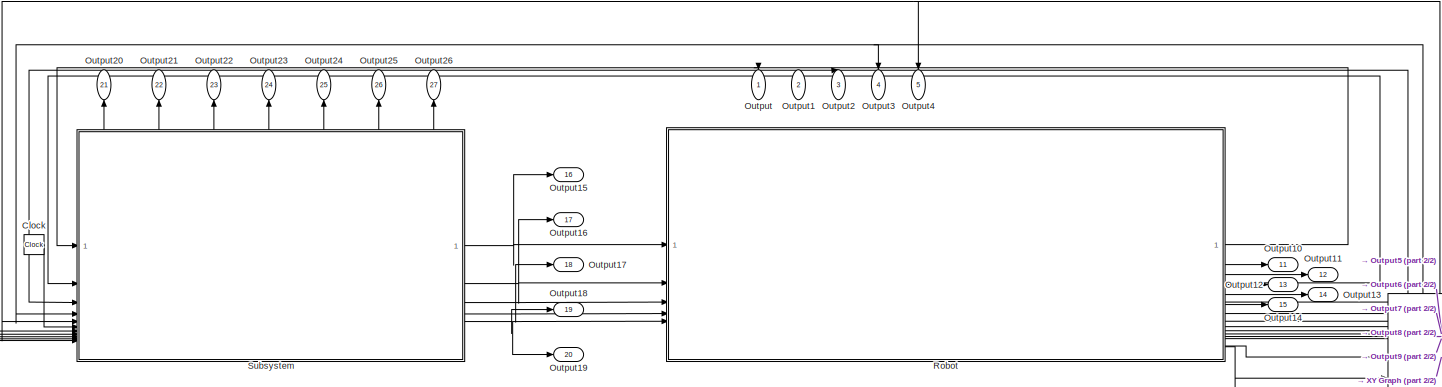
[diagram: root canvas - part 1/2, full width, middle band]
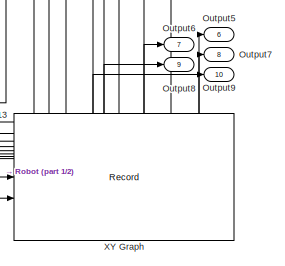
[diagram: root canvas - part 2/2, bottom right region]
MODEL slx_c414c2656b06
KIND model
CONFIG AbsTol = 1e-3
CONFIG EnableMultiTasking = on
CONFIG FixedStep = 0.01
CONFIG MaxStep = 0.1
CONFIG MinStep = auto
CONFIG RelTol = 1e-3
CONFIG SampleTimeConstraint = Unconstrained
CONFIG SolverName = ode45
CONFIG StartTime = 0.0
CONFIG StopTime = 20
WORKSPACE source: mxarray member
WORKSPACE N = 10000
WORKSPACE Ulim = 100000
BLOCK [Clock] Clock
  Decimation = 1000
BLOCK [Outport] Output
  NameLocation = left
BLOCK [Outport] Output1
  NameLocation = left
  Port = 2
BLOCK [Outport] Output10
  Port = 11
BLOCK [Outport] Output11
  Port = 12
BLOCK [Outport] Output12
  Port = 13
BLOCK [Outport] Output13
  Port = 14
BLOCK [Outport] Output14
  Port = 15
BLOCK [Outport] Output15
  Port = 16
BLOCK [Outport] Output16
  Port = 17
BLOCK [Outport] Output17
  Port = 18
BLOCK [Outport] Output18
  Port = 19
BLOCK [Outport] Output19
  Port = 20
BLOCK [Outport] Output2
  NameLocation = left
  Port = 3
BLOCK [Outport] Output20
  NameLocation = right
  Port = 21
BLOCK [Outport] Output21
  NameLocation = right
  Port = 22
BLOCK [Outport] Output22
  NameLocation = right
  Port = 23
BLOCK [Outport] Output23
  NameLocation = right
  Port = 24
BLOCK [Outport] Output24
  NameLocation = right
  Port = 25
BLOCK [Outport] Output25
  NameLocation = right
  Port = 26
BLOCK [Outport] Output26
  NameLocation = right
  Port = 27
BLOCK [Outport] Output3
  NameLocation = left
  Port = 4
BLOCK [Outport] Output4
  NameLocation = left
  Port = 5
BLOCK [Outport] Output5
  Port = 6
BLOCK [Outport] Output6
  Port = 7
BLOCK [Outport] Output7
  Port = 8
BLOCK [Outport] Output8
  Port = 9
BLOCK [Outport] Output9
  Port = 10
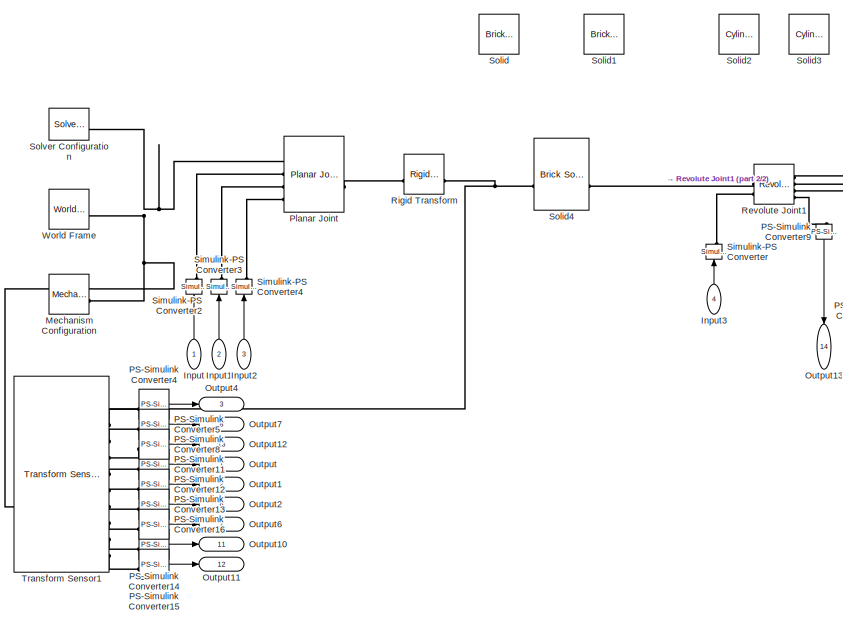
[diagram: Robot - part 1/2, left side, full height]
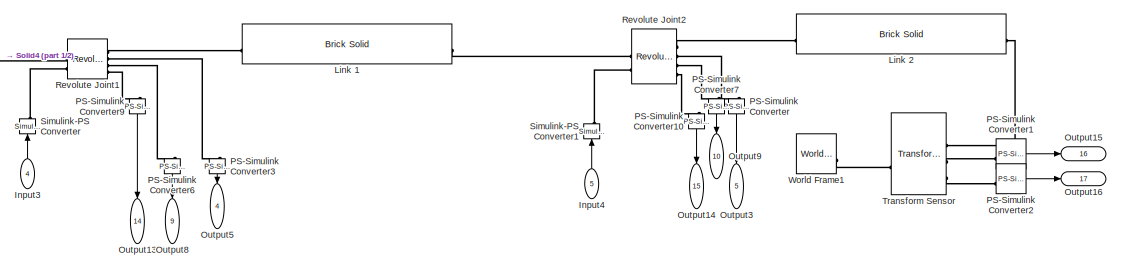
[diagram: Robot - part 2/2, middle right region]
BLOCK [SubSystem] Robot
BLOCK [Inport] Robot/Input
  IconDisplay = Signal name
  NameLocation = right
BLOCK [Inport] Robot/Input1
  IconDisplay = Signal name
  NameLocation = right
  Port = 2
BLOCK [Inport] Robot/Input2
  IconDisplay = Signal name
  NameLocation = right
  Port = 3
BLOCK [Inport] Robot/Input3
  IconDisplay = Signal name
  NameLocation = right
  Port = 4
BLOCK [Inport] Robot/Input4
  IconDisplay = Signal name
  NameLocation = right
  Port = 5
BLOCK [Reference] Robot/Link 1  REF=sm_lib/Body Elements/Brick Solid
  SourceBlock = sm_lib/Body Elements/Brick Solid
  SourceType = Brick Solid
BLOCK [Reference] Robot/Link 2  REF=sm_lib/Body Elements/Brick Solid
  SourceBlock = sm_lib/Body Elements/Brick Solid
  SourceType = Brick Solid
BLOCK [Reference] Robot/Mechanism Configuration  REF=sm_lib/Utilities/Mechanism
Configuration
  SourceBlock = sm_lib/Utilities/Mechanism\nConfiguration
  SourceType = Mechanism\nConfiguration
BLOCK [Outport] Robot/Output
  IconDisplay = Signal name
BLOCK [Outport] Robot/Output1
  IconDisplay = Signal name
  Port = 2
BLOCK [Outport] Robot/Output10
  IconDisplay = Signal name
  Port = 11
BLOCK [Outport] Robot/Output11
  IconDisplay = Signal name
  Port = 12
BLOCK [Outport] Robot/Output12
  IconDisplay = Signal name
  Port = 13
BLOCK [Outport] Robot/Output13
  IconDisplay = Signal name
  NameLocation = left
  Port = 14
BLOCK [Outport] Robot/Output14
  IconDisplay = Signal name
  NameLocation = left
  Port = 15
BLOCK [Outport] Robot/Output15
  IconDisplay = Signal name
  Port = 16
BLOCK [Outport] Robot/Output16
  IconDisplay = Signal name
  Port = 17
BLOCK [Outport] Robot/Output2
  IconDisplay = Signal name
  Port = 6
BLOCK [Outport] Robot/Output3
  IconDisplay = Signal name
  NameLocation = left
  Port = 5
BLOCK [Outport] Robot/Output4
  IconDisplay = Signal name
  Port = 3
BLOCK [Outport] Robot/Output5
  IconDisplay = Signal name
  NameLocation = left
  Port = 4
BLOCK [Outport] Robot/Output6
  IconDisplay = Signal name
  Port = 7
BLOCK [Outport] Robot/Output7
  IconDisplay = Signal name
  Port = 8
BLOCK [Outport] Robot/Output8
  IconDisplay = Signal name
  NameLocation = left
  Port = 9
BLOCK [Outport] Robot/Output9
  IconDisplay = Signal name
  NameLocation = left
  Port = 10
BLOCK [Reference] Robot/PS-Simulink Converter  REF=nesl_utility/PS-Simulink
Converter
  NameLocation = left
  SourceBlock = nesl_utility/PS-Simulink\nConverter
  SourceType = PS-Simulink\nConverter
BLOCK [Reference] Robot/PS-Simulink Converter1  REF=nesl_utility/PS-Simulink
Converter
  SourceBlock = nesl_utility/PS-Simulink\nConverter
  SourceType = PS-Simulink\nConverter
BLOCK [Reference] Robot/PS-Simulink Converter10  REF=nesl_utility/PS-Simulink
Converter
  NameLocation = left
  SourceBlock = nesl_utility/PS-Simulink\nConverter
  SourceType = PS-Simulink\nConverter
BLOCK [Reference] Robot/PS-Simulink Converter11  REF=nesl_utility/PS-Simulink
Converter
  SourceBlock = nesl_utility/PS-Simulink\nConverter
  SourceType = PS-Simulink\nConverter
BLOCK [Reference] Robot/PS-Simulink Converter12  REF=nesl_utility/PS-Simulink
Converter
  SourceBlock = nesl_utility/PS-Simulink\nConverter
  SourceType = PS-Simulink\nConverter
BLOCK [Reference] Robot/PS-Simulink Converter13  REF=nesl_utility/PS-Simulink
Converter
  SourceBlock = nesl_utility/PS-Simulink\nConverter
  SourceType = PS-Simulink\nConverter
BLOCK [Reference] Robot/PS-Simulink Converter14  REF=nesl_utility/PS-Simulink
Converter
  SourceBlock = nesl_utility/PS-Simulink\nConverter
  SourceType = PS-Simulink\nConverter
BLOCK [Reference] Robot/PS-Simulink Converter15  REF=nesl_utility/PS-Simulink
Converter
  SourceBlock = nesl_utility/PS-Simulink\nConverter
  SourceType = PS-Simulink\nConverter
BLOCK [Reference] Robot/PS-Simulink Converter16  REF=nesl_utility/PS-Simulink
Converter
  SourceBlock = nesl_utility/PS-Simulink\nConverter
  SourceType = PS-Simulink\nConverter
BLOCK [Reference] Robot/PS-Simulink Converter2  REF=nesl_utility/PS-Simulink
Converter
  SourceBlock = nesl_utility/PS-Simulink\nConverter
  SourceType = PS-Simulink\nConverter
BLOCK [Reference] Robot/PS-Simulink Converter3  REF=nesl_utility/PS-Simulink
Converter
  NameLocation = left
  SourceBlock = nesl_utility/PS-Simulink\nConverter
  SourceType = PS-Simulink\nConverter
BLOCK [Reference] Robot/PS-Simulink Converter4  REF=nesl_utility/PS-Simulink
Converter
  SourceBlock = nesl_utility/PS-Simulink\nConverter
  SourceType = PS-Simulink\nConverter
BLOCK [Reference] Robot/PS-Simulink Converter5  REF=nesl_utility/PS-Simulink
Converter
  SourceBlock = nesl_utility/PS-Simulink\nConverter
  SourceType = PS-Simulink\nConverter
BLOCK [Reference] Robot/PS-Simulink Converter6  REF=nesl_utility/PS-Simulink
Converter
  NameLocation = left
  SourceBlock = nesl_utility/PS-Simulink\nConverter
  SourceType = PS-Simulink\nConverter
BLOCK [Reference] Robot/PS-Simulink Converter7  REF=nesl_utility/PS-Simulink
Converter
  NameLocation = left
  SourceBlock = nesl_utility/PS-Simulink\nConverter
  SourceType = PS-Simulink\nConverter
BLOCK [Reference] Robot/PS-Simulink Converter8  REF=nesl_utility/PS-Simulink
Converter
  SourceBlock = nesl_utility/PS-Simulink\nConverter
  SourceType = PS-Simulink\nConverter
BLOCK [Reference] Robot/PS-Simulink Converter9  REF=nesl_utility/PS-Simulink
Converter
  NameLocation = left
  SourceBlock = nesl_utility/PS-Simulink\nConverter
  SourceType = PS-Simulink\nConverter
BLOCK [Reference] Robot/Planar Joint  REF=sm_lib/Joints/Planar Joint
  SourceBlock = sm_lib/Joints/Planar Joint
  SourceType = Planar Joint
BLOCK [Reference] Robot/Revolute Joint1  REF=sm_lib/Joints/Revolute Joint
  SourceBlock = sm_lib/Joints/Revolute Joint
  SourceType = Revolute Joint
BLOCK [Reference] Robot/Revolute Joint2  REF=sm_lib/Joints/Revolute Joint
  SourceBlock = sm_lib/Joints/Revolute Joint
  SourceType = Revolute Joint
BLOCK [Reference] Robot/Rigid Transform  REF=sm_lib/Frames and
Transforms/Rigid
Transform
  SourceBlock = sm_lib/Frames and\nTransforms/Rigid\nTransform
  SourceType = Rigid\nTransform
BLOCK [Reference] Robot/Simulink-PS Converter  REF=nesl_utility/Simulink-PS
Converter
  NameLocation = right
  SourceBlock = nesl_utility/Simulink-PS\nConverter
  SourceType = Simulink-PS\nConverter
BLOCK [Reference] Robot/Simulink-PS Converter1  REF=nesl_utility/Simulink-PS
Converter
  NameLocation = right
  SourceBlock = nesl_utility/Simulink-PS\nConverter
  SourceType = Simulink-PS\nConverter
BLOCK [Reference] Robot/Simulink-PS Converter2  REF=nesl_utility/Simulink-PS
Converter
  NameLocation = right
  SourceBlock = nesl_utility/Simulink-PS\nConverter
  SourceType = Simulink-PS\nConverter
BLOCK [Reference] Robot/Simulink-PS Converter3  REF=nesl_utility/Simulink-PS
Converter
  NameLocation = right
  SourceBlock = nesl_utility/Simulink-PS\nConverter
  SourceType = Simulink-PS\nConverter
BLOCK [Reference] Robot/Simulink-PS Converter4  REF=nesl_utility/Simulink-PS
Converter
  NameLocation = right
  SourceBlock = nesl_utility/Simulink-PS\nConverter
  SourceType = Simulink-PS\nConverter
BLOCK [Reference] Robot/Solid  REF=sm_lib/Body Elements/Brick Solid
  Commented = on
  NameLocation = top
  SourceBlock = sm_lib/Body Elements/Brick Solid
  SourceType = Brick Solid
BLOCK [Reference] Robot/Solid1  REF=sm_lib/Body Elements/Brick Solid
  Commented = on
  SourceBlock = sm_lib/Body Elements/Brick Solid
  SourceType = Brick Solid
BLOCK [Reference] Robot/Solid2  REF=sm_lib/Body Elements/Cylindrical Solid
  Commented = on
  SourceBlock = sm_lib/Body Elements/Cylindrical Solid
  SourceType = Cylindrical Solid
BLOCK [Reference] Robot/Solid3  REF=sm_lib/Body Elements/Cylindrical Solid
  Commented = on
  SourceBlock = sm_lib/Body Elements/Cylindrical Solid
  SourceType = Cylindrical Solid
BLOCK [Reference] Robot/Solid4  REF=sm_lib/Body Elements/Brick Solid
  NameLocation = top
  SourceBlock = sm_lib/Body Elements/Brick Solid
  SourceType = Brick Solid
BLOCK [Reference] Robot/Solver Configuration  REF=nesl_utility/Solver
Configuration
  SourceBlock = nesl_utility/Solver\nConfiguration
  SourceType = Solver\nConfiguration
BLOCK [Reference] Robot/Transform Sensor  REF=sm_lib/Frames and
Transforms/Transform
Sensor
  SourceBlock = sm_lib/Frames and\nTransforms/Transform\nSensor
  SourceType = Transform\nSensor
BLOCK [Reference] Robot/Transform Sensor1  REF=sm_lib/Frames and
Transforms/Transform
Sensor
  SourceBlock = sm_lib/Frames and\nTransforms/Transform\nSensor
  SourceType = Transform\nSensor
BLOCK [Reference] Robot/World Frame  REF=sm_lib/Frames and
Transforms/World Frame
  SourceBlock = sm_lib/Frames and\nTransforms/World Frame
  SourceType = World Frame
BLOCK [Reference] Robot/World Frame1  REF=sm_lib/Frames and
Transforms/World Frame
  SourceBlock = sm_lib/Frames and\nTransforms/World Frame
  SourceType = World Frame
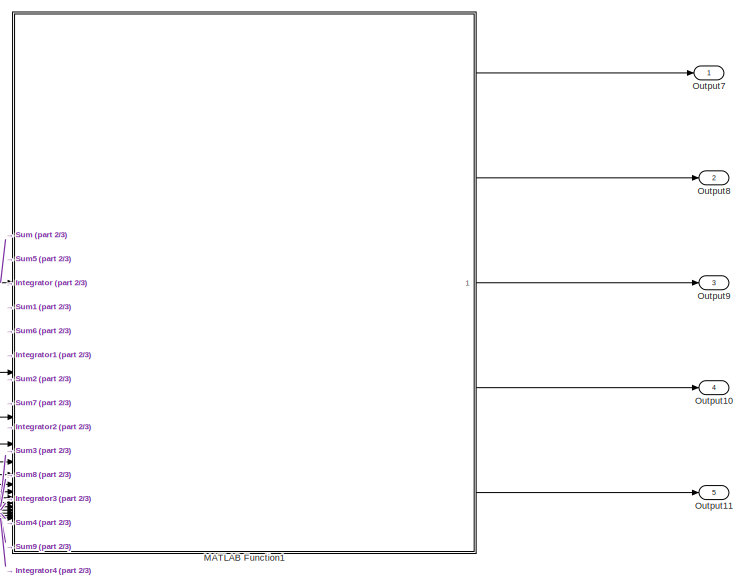
[diagram: Subsystem - part 1/3, middle right region]
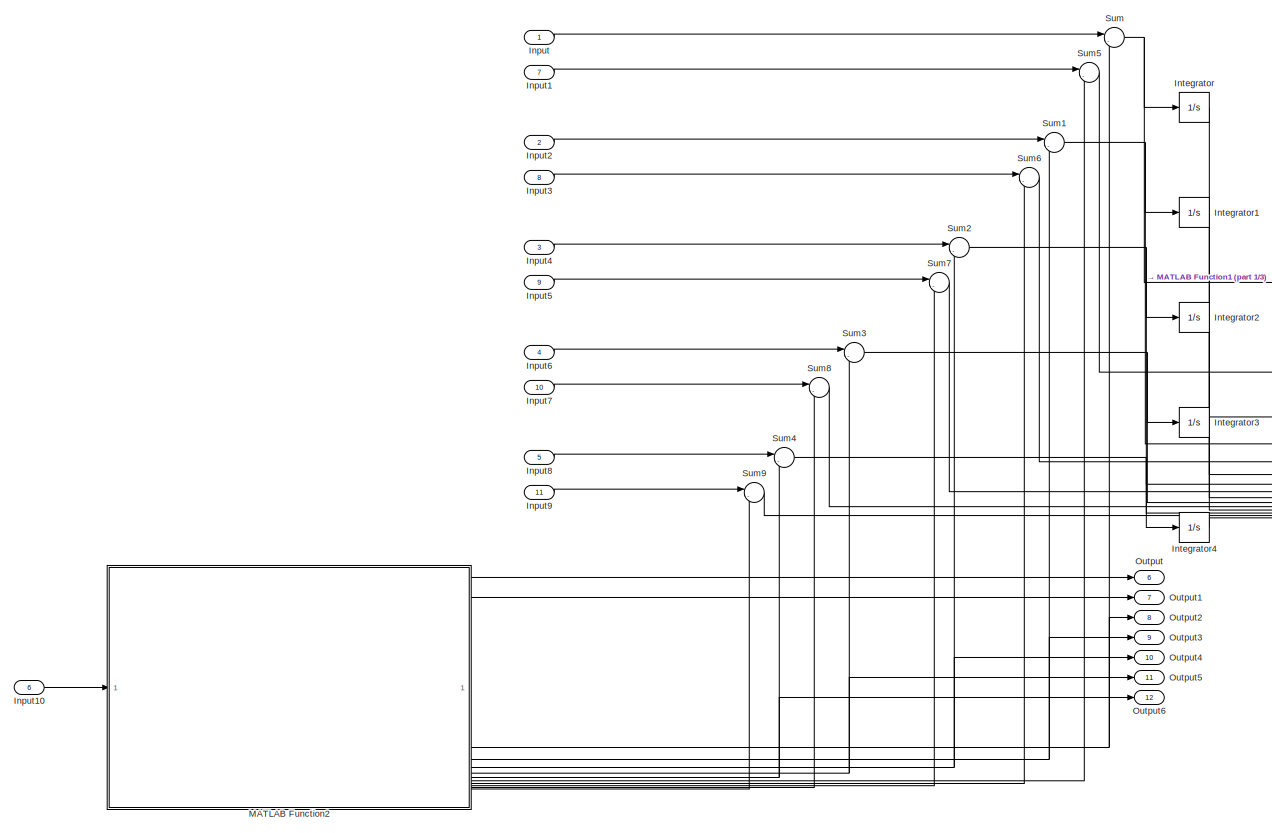
[diagram: Subsystem - part 2/3, center side, full height]
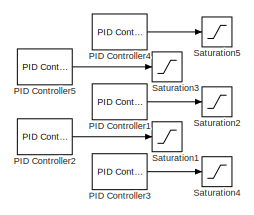
[diagram: Subsystem - part 3/3, middle left region]
BLOCK [SubSystem] Subsystem
  PortSchema = {"entries":[{"content":{"sides":[{"content":{"connectorIds":["In1","In2","In3","In4","In5","In6","In7","In8","In9","In10","In11"]},"type":"ConnectorPlacement.EquallySpacedRectSide","uuid":"b8769358-97ec-483c-a446-740b08b88b02"},{"content":{"connectorIds":["Out1","Out2","Out3","Out4","Out5"],"side":"RIGHT"},"type":"ConnectorPlacement.EquallySpacedRectSide","uuid":"e4d005e6-bdee-4c64-8aa8-fea3691b09...<+381ch>
  ShowPortLabels = SignalName
  SystemSampleTime = 0
  TreatAsAtomicUnit = on
  TreatAsGroupedWhenPropagatingVariantConditions = off
BLOCK [Inport] Subsystem/Input
BLOCK [Inport] Subsystem/Input1
  Port = 7
BLOCK [Inport] Subsystem/Input10
  IconDisplay = Signal name
  Port = 6
  SampleTime = 0
BLOCK [Inport] Subsystem/Input2
  Port = 2
BLOCK [Inport] Subsystem/Input3
  Port = 8
BLOCK [Inport] Subsystem/Input4
  Port = 3
BLOCK [Inport] Subsystem/Input5
  Port = 9
BLOCK [Inport] Subsystem/Input6
  Port = 4
BLOCK [Inport] Subsystem/Input7
  Port = 10
BLOCK [Inport] Subsystem/Input8
  Port = 5
BLOCK [Inport] Subsystem/Input9
  Port = 11
BLOCK [Integrator] Subsystem/Integrator
BLOCK [Integrator] Subsystem/Integrator1
BLOCK [Integrator] Subsystem/Integrator2
BLOCK [Integrator] Subsystem/Integrator3
BLOCK [Integrator] Subsystem/Integrator4
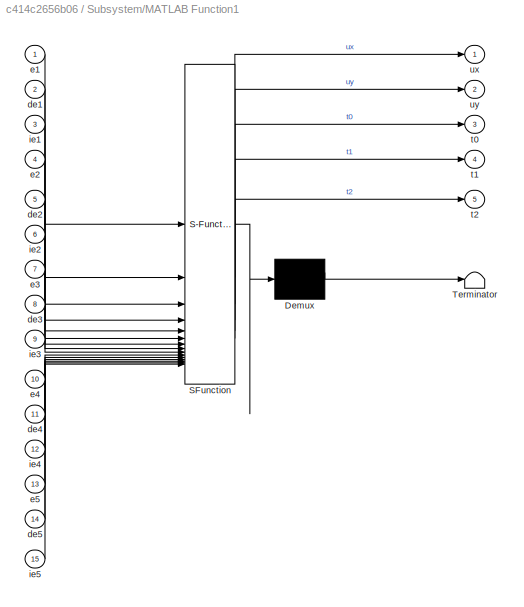
BLOCK [SubSystem] Subsystem/MATLAB Function1
  ErrorFcn = Stateflow.Translate.translate
  MinAlgLoopOccurrences = on
  PermitHierarchicalResolution = ExplicitOnly
  SFBlockType = MATLAB Function
BLOCK [Demux] Subsystem/MATLAB Function1/ Demux 
  Outputs = 1
BLOCK [S-Function] Subsystem/MATLAB Function1/ SFunction 
  EnableBusSupport = on
  FunctionName = sf_sfun
  PortCounts = [15 6]
  SFcnIsStateOwnerBlock = off
  SFunctionDeploymentMode = off
  Tag = Stateflow S-Function 1
BLOCK [Terminator] Subsystem/MATLAB Function1/ Terminator 
BLOCK [Inport] Subsystem/MATLAB Function1/de1
  Port = 2
BLOCK [Inport] Subsystem/MATLAB Function1/de2
  Port = 5
BLOCK [Inport] Subsystem/MATLAB Function1/de3
  Port = 8
BLOCK [Inport] Subsystem/MATLAB Function1/de4
  Port = 11
BLOCK [Inport] Subsystem/MATLAB Function1/de5
  Port = 14
BLOCK [Inport] Subsystem/MATLAB Function1/e1
BLOCK [Inport] Subsystem/MATLAB Function1/e2
  Port = 4
BLOCK [Inport] Subsystem/MATLAB Function1/e3
  Port = 7
BLOCK [Inport] Subsystem/MATLAB Function1/e4
  Port = 10
BLOCK [Inport] Subsystem/MATLAB Function1/e5
  Port = 13
BLOCK [Inport] Subsystem/MATLAB Function1/ie1
  Port = 3
BLOCK [Inport] Subsystem/MATLAB Function1/ie2
  Port = 6
BLOCK [Inport] Subsystem/MATLAB Function1/ie3
  Port = 9
BLOCK [Inport] Subsystem/MATLAB Function1/ie4
  Port = 12
BLOCK [Inport] Subsystem/MATLAB Function1/ie5
  Port = 15
BLOCK [Outport] Subsystem/MATLAB Function1/t0
  Port = 3
BLOCK [Outport] Subsystem/MATLAB Function1/t1
  Port = 4
BLOCK [Outport] Subsystem/MATLAB Function1/t2
  Port = 5
BLOCK [Outport] Subsystem/MATLAB Function1/ux
BLOCK [Outport] Subsystem/MATLAB Function1/uy
  Port = 2
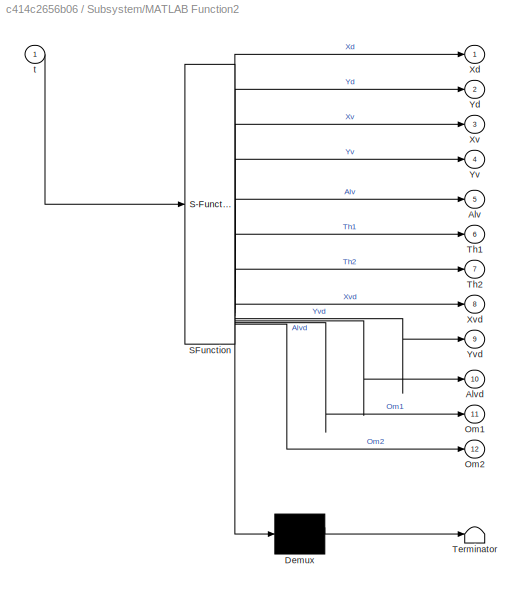
BLOCK [SubSystem] Subsystem/MATLAB Function2
  ErrorFcn = Stateflow.Translate.translate
  MinAlgLoopOccurrences = on
  PermitHierarchicalResolution = ExplicitOnly
  SFBlockType = MATLAB Function
BLOCK [Demux] Subsystem/MATLAB Function2/ Demux 
  Outputs = 1
BLOCK [S-Function] Subsystem/MATLAB Function2/ SFunction 
  EnableBusSupport = on
  FunctionName = sf_sfun
  PortCounts = [1 13]
  SFcnIsStateOwnerBlock = off
  SFunctionDeploymentMode = off
  Tag = Stateflow S-Function 3
BLOCK [Terminator] Subsystem/MATLAB Function2/ Terminator 
BLOCK [Outport] Subsystem/MATLAB Function2/Alv
  Port = 5
BLOCK [Outport] Subsystem/MATLAB Function2/Alvd
  Port = 10
BLOCK [Outport] Subsystem/MATLAB Function2/Om1
  Port = 11
BLOCK [Outport] Subsystem/MATLAB Function2/Om2
  Port = 12
BLOCK [Outport] Subsystem/MATLAB Function2/Th1
  Port = 6
BLOCK [Outport] Subsystem/MATLAB Function2/Th2
  Port = 7
BLOCK [Outport] Subsystem/MATLAB Function2/Xd
BLOCK [Outport] Subsystem/MATLAB Function2/Xv
  Port = 3
BLOCK [Outport] Subsystem/MATLAB Function2/Xvd
  Port = 8
BLOCK [Outport] Subsystem/MATLAB Function2/Yd
  Port = 2
BLOCK [Outport] Subsystem/MATLAB Function2/Yv
  Port = 4
BLOCK [Outport] Subsystem/MATLAB Function2/Yvd
  Port = 9
BLOCK [Inport] Subsystem/MATLAB Function2/t
BLOCK [Outport] Subsystem/Output
  Port = 6
BLOCK [Outport] Subsystem/Output1
  Port = 7
BLOCK [Outport] Subsystem/Output10
  Port = 4
BLOCK [Outport] Subsystem/Output11
  Port = 5
BLOCK [Outport] Subsystem/Output2
  Port = 8
BLOCK [Outport] Subsystem/Output3
  Port = 9
BLOCK [Outport] Subsystem/Output4
  Port = 10
BLOCK [Outport] Subsystem/Output5
  Port = 11
BLOCK [Outport] Subsystem/Output6
  Port = 12
BLOCK [Outport] Subsystem/Output7
BLOCK [Outport] Subsystem/Output8
  Port = 2
BLOCK [Outport] Subsystem/Output9
  Port = 3
BLOCK [Reference] Subsystem/PID Controller1  REF=slpidlib/PID Controller
  Commented = on
  LibrarySourceBlock = simulink/Continuous/PID Controller
  SourceBlock = slpidlib/PID Controller
  SourceType = PID 1dof
BLOCK [Reference] Subsystem/PID Controller2  REF=slpidlib/PID Controller
  Commented = on
  LibrarySourceBlock = simulink/Continuous/PID Controller
  SourceBlock = slpidlib/PID Controller
  SourceType = PID 1dof
BLOCK [Reference] Subsystem/PID Controller3  REF=slpidlib/PID Controller
  Commented = on
  LibrarySourceBlock = simulink/Continuous/PID Controller
  SourceBlock = slpidlib/PID Controller
  SourceType = PID 1dof
BLOCK [Reference] Subsystem/PID Controller4  REF=slpidlib/PID Controller
  Commented = on
  LibrarySourceBlock = simulink/Continuous/PID Controller
  SourceBlock = slpidlib/PID Controller
  SourceType = PID 1dof
BLOCK [Reference] Subsystem/PID Controller5  REF=slpidlib/PID Controller
  Commented = on
  LibrarySourceBlock = simulink/Continuous/PID Controller
  SourceBlock = slpidlib/PID Controller
  SourceType = PID 1dof
BLOCK [Saturate] Subsystem/Saturation1
  Commented = on
  LowerLimit = -Ulim
  UpperLimit = Ulim
BLOCK [Saturate] Subsystem/Saturation2
  Commented = on
  LowerLimit = -Ulim
  UpperLimit = Ulim
BLOCK [Saturate] Subsystem/Saturation3
  Commented = on
  LowerLimit = -Ulim
  UpperLimit = Ulim
BLOCK [Saturate] Subsystem/Saturation4
  Commented = on
  LowerLimit = -Ulim
  UpperLimit = Ulim
BLOCK [Saturate] Subsystem/Saturation5
  Commented = on
  LowerLimit = -Ulim
  UpperLimit = Ulim
BLOCK [Sum] Subsystem/Sum
  Inputs = |-+
BLOCK [Sum] Subsystem/Sum1
  Inputs = |-+
BLOCK [Sum] Subsystem/Sum2
  Inputs = |-+
BLOCK [Sum] Subsystem/Sum3
  Inputs = |-+
BLOCK [Sum] Subsystem/Sum4
  Inputs = |-+
BLOCK [Sum] Subsystem/Sum5
  Inputs = |-+
BLOCK [Sum] Subsystem/Sum6
  Inputs = |-+
BLOCK [Sum] Subsystem/Sum7
  Inputs = |-+
BLOCK [Sum] Subsystem/Sum8
  Inputs = |-+
BLOCK [Sum] Subsystem/Sum9
  Inputs = |-+
BLOCK [Record] XY Graph
  CompatibilityTag = XY
  FileSettingsInternal = {"entries":[{"content":{"excelSettings":{"content":{},"type":"Streamout.ExcelSettings"}},"type":"Streamout.FileSettingStorage","uuid":""}],"packageUris":["http:\/\/schema.mathworks.com\/mf0\/streamout_blocks\/R2020a"],"version":"1.0"}
  Layout = [1 1]
  SignalsInternal = {"entries":[{"content":{"signals":[{"content":{"blockPath":[],"dimensions":[1],"domain":"","lineColor":"#a2142f","plots":[ 1 ],"port":1,"signalID":1,"signalName":"Robot:16"},"type":"RecordBlkView.Signal","uuid":""},{"content":{"blockPath":[],"dimensions":[1],"domain":"","lineColor":"#139fff","plots":[ 1 ],"port":2,"signalID":2,"signalName":"Robot:17"},"type":"RecordBlkView.Signal","uuid":""}]},"ty...<+140ch>
  VisualizationBindings = {"xyplotplugin":{"info":[{"series":[{"bindingParametersList":[{"parameter":"X-Axis","signalID":1,"signalName":"Robot:16"},{"parameter":"Y-Axis","signalID":2,"signalName":"Robot:17"}],"seriesID":0}],"subplotID":1}]}}
LINE Clock:1 -> Subsystem:6
LINE Robot/Input1:1 -> Robot/Simulink-PS Converter3:1
LINE Robot/Input2:1 -> Robot/Simulink-PS Converter4:1
LINE Robot/Input3:1 -> Robot/Simulink-PS Converter:1
LINE Robot/Input4:1 -> Robot/Simulink-PS Converter1:1
LINE Robot/Input:1 -> Robot/Simulink-PS Converter2:1
LINE Robot/PS-Simulink Converter10:1 -> Robot/Output14:1
LINE Robot/PS-Simulink Converter11:1 -> Robot/Output:1
LINE Robot/PS-Simulink Converter12:1 -> Robot/Output1:1
LINE Robot/PS-Simulink Converter13:1 -> Robot/Output2:1
LINE Robot/PS-Simulink Converter14:1 -> Robot/Output10:1
LINE Robot/PS-Simulink Converter15:1 -> Robot/Output11:1
LINE Robot/PS-Simulink Converter16:1 -> Robot/Output6:1
LINE Robot/PS-Simulink Converter1:1 -> Robot/Output15:1
LINE Robot/PS-Simulink Converter2:1 -> Robot/Output16:1
LINE Robot/PS-Simulink Converter3:1 -> Robot/Output5:1
LINE Robot/PS-Simulink Converter4:1 -> Robot/Output4:1
LINE Robot/PS-Simulink Converter5:1 -> Robot/Output7:1
LINE Robot/PS-Simulink Converter6:1 -> Robot/Output8:1
LINE Robot/PS-Simulink Converter7:1 -> Robot/Output9:1
LINE Robot/PS-Simulink Converter8:1 -> Robot/Output12:1
LINE Robot/PS-Simulink Converter9:1 -> Robot/Output13:1
LINE Robot/PS-Simulink Converter:1 -> Robot/Output3:1
NET Robot:1 -> Output:1, Subsystem:1
NET Robot:10 -> Output9:1, Subsystem:11
LINE Robot:11 -> Output10:1
LINE Robot:12 -> Output11:1
LINE Robot:13 -> Output12:1
LINE Robot:14 -> Output13:1
LINE Robot:15 -> Output14:1
LINE Robot:16 -> XY Graph:1
LINE Robot:17 -> XY Graph:2
NET Robot:2 -> Output1:1, Subsystem:2
NET Robot:3 -> Output2:1, Subsystem:3
NET Robot:4 -> Output3:1, Subsystem:4
NET Robot:5 -> Output4:1, Subsystem:5
NET Robot:6 -> Output5:1, Subsystem:7
NET Robot:7 -> Output6:1, Subsystem:8
NET Robot:8 -> Output7:1, Subsystem:9
NET Robot:9 -> Output8:1, Subsystem:10
LINE Subsystem/Input10:1 -> Subsystem/MATLAB Function2:1
LINE Subsystem/Input1:1 -> Subsystem/Sum5:1
LINE Subsystem/Input2:1 -> Subsystem/Sum1:1
LINE Subsystem/Input3:1 -> Subsystem/Sum6:1
LINE Subsystem/Input4:1 -> Subsystem/Sum2:1
LINE Subsystem/Input5:1 -> Subsystem/Sum7:1
LINE Subsystem/Input6:1 -> Subsystem/Sum3:1
LINE Subsystem/Input7:1 -> Subsystem/Sum8:1
LINE Subsystem/Input8:1 -> Subsystem/Sum4:1
LINE Subsystem/Input9:1 -> Subsystem/Sum9:1
LINE Subsystem/Input:1 -> Subsystem/Sum:1
LINE Subsystem/Integrator1:1 -> Subsystem/MATLAB Function1:6
LINE Subsystem/Integrator2:1 -> Subsystem/MATLAB Function1:9
LINE Subsystem/Integrator3:1 -> Subsystem/MATLAB Function1:12
LINE Subsystem/Integrator4:1 -> Subsystem/MATLAB Function1:15
LINE Subsystem/Integrator:1 -> Subsystem/MATLAB Function1:3
LINE Subsystem/MATLAB Function1:1 -> Subsystem/Output7:1
LINE Subsystem/MATLAB Function1:2 -> Subsystem/Output8:1
LINE Subsystem/MATLAB Function1:3 -> Subsystem/Output9:1
LINE Subsystem/MATLAB Function1:4 -> Subsystem/Output10:1
LINE Subsystem/MATLAB Function1:5 -> Subsystem/Output11:1
LINE Subsystem/MATLAB Function2:1 -> Subsystem/Output:1
LINE Subsystem/MATLAB Function2:10 -> Subsystem/Sum7:2
LINE Subsystem/MATLAB Function2:11 -> Subsystem/Sum8:2
LINE Subsystem/MATLAB Function2:12 -> Subsystem/Sum9:2
LINE Subsystem/MATLAB Function2:2 -> Subsystem/Output1:1
NET Subsystem/MATLAB Function2:3 -> Subsystem/Output2:1, Subsystem/Sum:2
NET Subsystem/MATLAB Function2:4 -> Subsystem/Output3:1, Subsystem/Sum1:2
NET Subsystem/MATLAB Function2:5 -> Subsystem/Output4:1, Subsystem/Sum2:2
NET Subsystem/MATLAB Function2:6 -> Subsystem/Output5:1, Subsystem/Sum3:2
NET Subsystem/MATLAB Function2:7 -> Subsystem/Output6:1, Subsystem/Sum4:2
LINE Subsystem/MATLAB Function2:8 -> Subsystem/Sum5:2
LINE Subsystem/MATLAB Function2:9 -> Subsystem/Sum6:2
LINE Subsystem/PID Controller1:1 -> Subsystem/Saturation2:1
LINE Subsystem/PID Controller2:1 -> Subsystem/Saturation1:1
LINE Subsystem/PID Controller3:1 -> Subsystem/Saturation4:1
LINE Subsystem/PID Controller4:1 -> Subsystem/Saturation5:1
LINE Subsystem/PID Controller5:1 -> Subsystem/Saturation3:1
NET Subsystem/Sum1:1 -> Subsystem/Integrator1:1, Subsystem/MATLAB Function1:4
NET Subsystem/Sum2:1 -> Subsystem/Integrator2:1, Subsystem/MATLAB Function1:7
NET Subsystem/Sum3:1 -> Subsystem/Integrator3:1, Subsystem/MATLAB Function1:10
NET Subsystem/Sum4:1 -> Subsystem/Integrator4:1, Subsystem/MATLAB Function1:13
LINE Subsystem/Sum5:1 -> Subsystem/MATLAB Function1:2
LINE Subsystem/Sum6:1 -> Subsystem/MATLAB Function1:5
LINE Subsystem/Sum7:1 -> Subsystem/MATLAB Function1:8
LINE Subsystem/Sum8:1 -> Subsystem/MATLAB Function1:11
LINE Subsystem/Sum9:1 -> Subsystem/MATLAB Function1:14
NET Subsystem/Sum:1 -> Subsystem/Integrator:1, Subsystem/MATLAB Function1:1
NET Subsystem:1 -> Output15:1, Robot:1
LINE Subsystem:10 -> Output24:1
LINE Subsystem:11 -> Output25:1
LINE Subsystem:12 -> Output26:1
NET Subsystem:2 -> Output16:1, Robot:2
NET Subsystem:3 -> Output17:1, Robot:3
NET Subsystem:4 -> Output18:1, Robot:4
NET Subsystem:5 -> Output19:1, Robot:5
LINE Subsystem:6 -> Output20:1
LINE Subsystem:7 -> Output21:1
LINE Subsystem:8 -> Output22:1
LINE Subsystem:9 -> Output23:1
PLINE Robot/Link 1:LConn1 -- Robot/Revolute Joint1:RConn1
PLINE Robot/Link 1:RConn1 -- Robot/Revolute Joint2:LConn1
PLINE Robot/Link 2:LConn1 -- Robot/Revolute Joint2:RConn1
PLINE Robot/Link 2:RConn1 -- Robot/Transform Sensor:RConn1
PNET net1: Robot/Mechanism Configuration:RConn1 -- Robot/Planar Joint:LConn1 -- Robot/Solver Configuration:RConn1 -- Robot/Transform Sensor1:LConn1 -- Robot/World Frame:RConn1
PLINE Robot/PS-Simulink Converter10:LConn1 -- Robot/Revolute Joint2:RConn4
PLINE Robot/PS-Simulink Converter11:LConn1 -- Robot/Transform Sensor1:RConn5
PLINE Robot/PS-Simulink Converter12:LConn1 -- Robot/Transform Sensor1:RConn6
PLINE Robot/PS-Simulink Converter13:LConn1 -- Robot/Transform Sensor1:RConn7
PLINE Robot/PS-Simulink Converter14:LConn1 -- Robot/Transform Sensor1:RConn9
PLINE Robot/PS-Simulink Converter15:LConn1 -- Robot/Transform Sensor1:RConn10
PLINE Robot/PS-Simulink Converter16:LConn1 -- Robot/Transform Sensor1:RConn8
PLINE Robot/PS-Simulink Converter1:LConn1 -- Robot/Transform Sensor:RConn2
PLINE Robot/PS-Simulink Converter2:LConn1 -- Robot/Transform Sensor:RConn3
PLINE Robot/PS-Simulink Converter3:LConn1 -- Robot/Revolute Joint1:RConn2
PLINE Robot/PS-Simulink Converter4:LConn1 -- Robot/Transform Sensor1:RConn2
PLINE Robot/PS-Simulink Converter5:LConn1 -- Robot/Transform Sensor1:RConn3
PLINE Robot/PS-Simulink Converter6:LConn1 -- Robot/Revolute Joint1:RConn3
PLINE Robot/PS-Simulink Converter7:LConn1 -- Robot/Revolute Joint2:RConn3
PLINE Robot/PS-Simulink Converter8:LConn1 -- Robot/Transform Sensor1:RConn4
PLINE Robot/PS-Simulink Converter9:LConn1 -- Robot/Revolute Joint1:RConn4
PLINE Robot/PS-Simulink Converter:LConn1 -- Robot/Revolute Joint2:RConn2
PLINE Robot/Planar Joint:LConn2 -- Robot/Simulink-PS Converter2:RConn1
PLINE Robot/Planar Joint:LConn3 -- Robot/Simulink-PS Converter3:RConn1
PLINE Robot/Planar Joint:LConn4 -- Robot/Simulink-PS Converter4:RConn1
PLINE Robot/Planar Joint:RConn1 -- Robot/Rigid Transform:LConn1
PLINE Robot/Revolute Joint1:LConn1 -- Robot/Solid4:LConn1
PLINE Robot/Revolute Joint1:LConn2 -- Robot/Simulink-PS Converter:RConn1
PLINE Robot/Revolute Joint2:LConn2 -- Robot/Simulink-PS Converter1:RConn1
PNET net2: Robot/Rigid Transform:RConn1 -- Robot/Solid4:RConn1 -- Robot/Transform Sensor1:RConn1
PLINE Robot/Transform Sensor:LConn1 -- Robot/World Frame1:RConn1
note: NET lines group one-source signal fan-out (src -> all destinations, sorted); 1:1 wires keep LINE; PNET lines group multi-terminal physical nets as a canonical sorted terminal list (undirected conserving connections); 2-terminal nets keep the pairwise PLINE form
CHART Subsystem/MATLAB Function2 states=1 transitions=1
  STATE_LABEL 'eML_blk_kernel()'
  STATE_LABEL 'SCRIPT:\nfunction [Xd, Yd, Xv, Yv, Alv, Th1, Th2, Xvd, Yvd, Alvd, Om1, Om2] = targets(t)\nctrlParams = params_control();\nsysParams = params_system();\n\n% disp(t)\n\n[Xd, Yd, Xdd, Ydd, Xv, Xvd, Yv, Yvd] = referenceTrajectory(t, ctrlParams,sysParams);\n\n[Alv,Th1,Th2,Alvd, Om1, Om2] = InverseKinematics(Xd,Yd,Xdd,Ydd,Xv,Xvd,Yv,Yvd);\n'
CHART Subsystem/MATLAB Function1 states=1 transitions=1
  STATE_LABEL 'eML_blk_kernel()'
  STATE_LABEL 'SCRIPT:\nfunction [ux, uy, t0, t1, t2] = targets(e1,de1,ie1,e2,de2,ie2,e3,de3,ie3,e4,de4,ie4,e5,de5,ie5)\nctrlParams = params_control();\n\nF = zeros(5,1);\nFlim = ctrlParams.Flim;\n\nPID1 = ctrlParams.PID1;\nPID2 = ctrlParams.PID2;\nPID3 = ctrlParams.PID3;\nPID4 = ctrlParams.PID4;\nPID5 = ctrlParams.PID5;\n\nF(1) = PID1(1)*e1 + PID1(2)*ie1 + PID1(3)*de1;\nif F(1) > Flim\n    F(1) = Flim;\nelseif F(1) < -Flim\n   ...<+563ch>'
CHART  states=0 transitions=0
CHART  states=0 transitions=0
